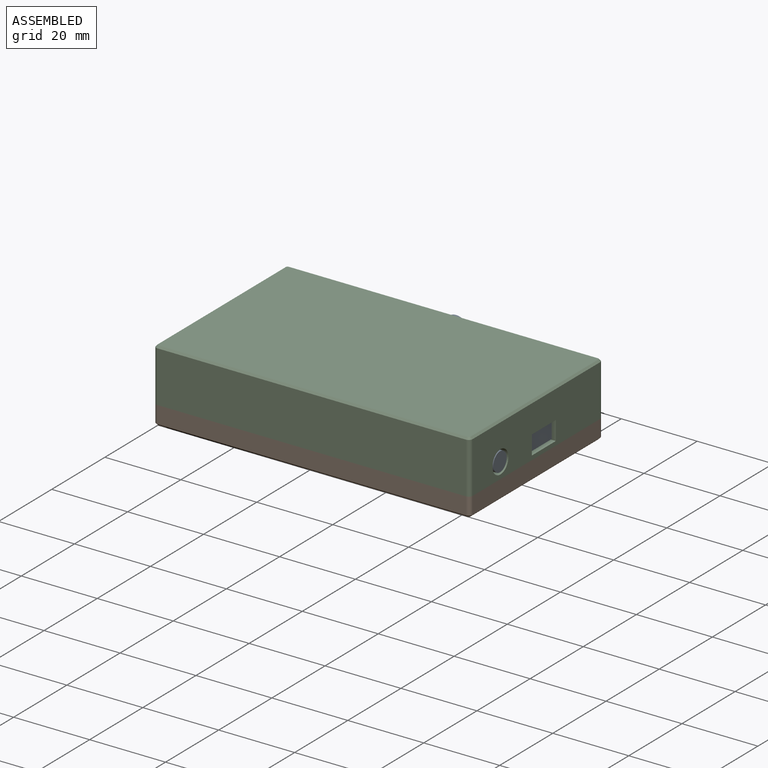
[diagram: assembled view]
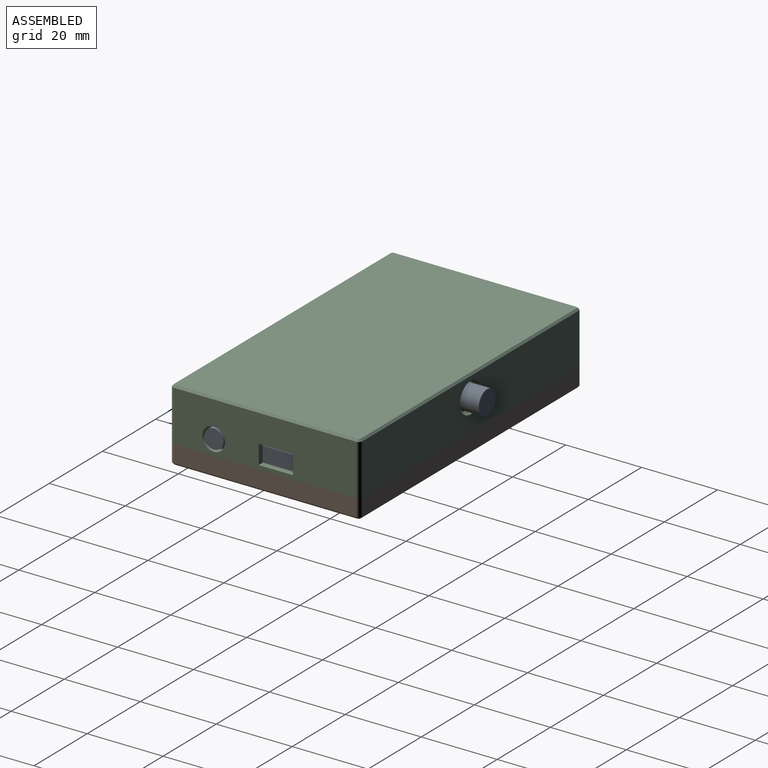
[diagram: assembled view, second angle]
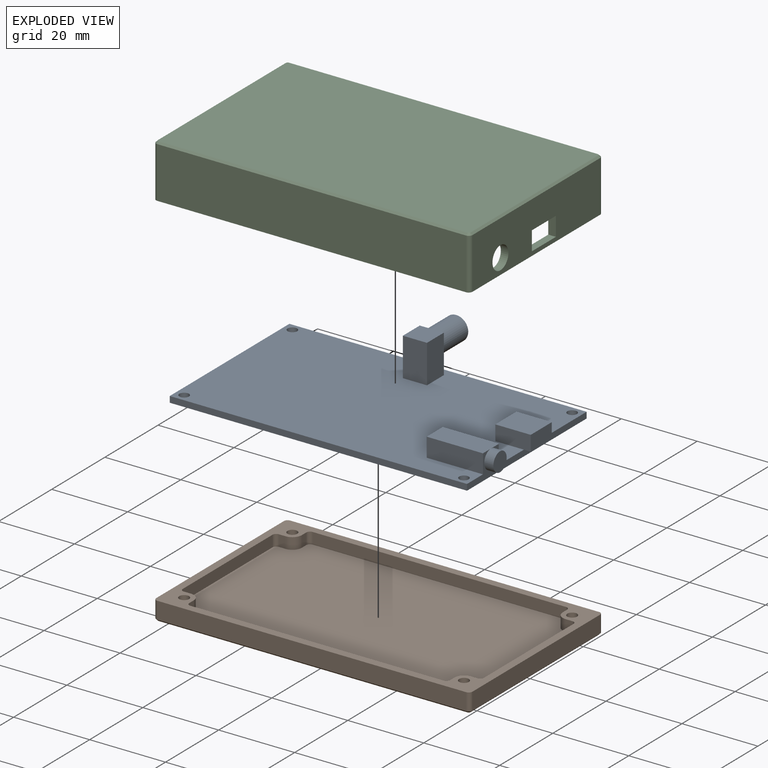
[diagram: exploded view]
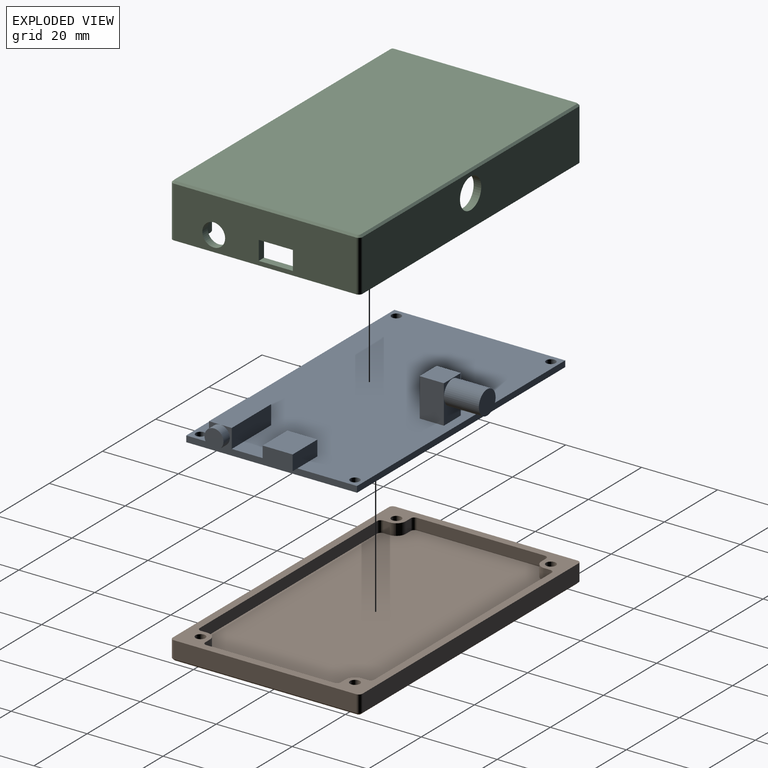
[diagram: exploded view, second angle]
ASSEMBLY  parts=3 mates=2
PART A: 29 faces, bbox 80.7x51.9x11.7 mm
  f0: plane 78.3x1.6mm, normal (0,1,0), area 125.3mm2, adj f1,f7,f8,f9
  f1: plane 45x1.6mm, normal (-1,0,0), area 72mm2, adj f0,f2,f8,f9
  f2: plane 78.3x1.6mm, normal (0,-1,0), area 125.3mm2, adj f1,f7,f8,f9
  f3: cylinder r=1.25mm len=2.5mm, axis (0,0,1), area 12.6mm2, adj f8,f9
  f4: cylinder r=1.25mm len=2.5mm, axis (0,0,1), area 12.6mm2, adj f8,f9
  f5: cylinder r=1.25mm len=2.5mm, axis (0,0,1), area 12.6mm2, adj f8,f9
  f6: cylinder r=1.25mm len=2.5mm, axis (0,0,1), area 12.6mm2, adj f8,f9
  f7: plane 45x6.6mm, normal (1,0,0), area 82.4mm2, adj f0,f2,f8,f9,f10,f11,f12,f14
  f8: plane 78.3x45mm, normal (0,0,-1), area 3503.9mm2, adj f0,f1,f2,f3,f4,f5,f6,f7
  f9: plane 78.3x45mm, normal (0,0,1), area 3315.5mm2, adj f0,f1,f2,f3,f4,f5,f6,f7
  f10: plane 14.8x6mm, normal (0,0,1), area 88.8mm2, adj f7,f11,f12,f13
  f11: plane 14.8x5mm, normal (0,-1,0), area 74mm2, adj f7,f9,f10,f13
  f12: plane 14.8x5mm, normal (0,1,0), area 74mm2, adj f7,f9,f10,f13
  f13: plane 6x5mm, normal (-1,0,0), area 30mm2, adj f9,f10,f11,f12
  f14: cylinder r=2.5mm len=5mm, axis (-1,0,0), area 37.7mm2, adj f7,f15
  f15: plane 5x5mm, normal (1,0,0), area 19.6mm2, adj f14
  f16: plane 7.9x1.8mm, normal (0,0,-1), area 14.2mm2, adj f7,f17,f18,f20
  f17: plane 9.3x4mm, normal (0,-1,0), area 37.2mm2, adj f9,f16,f19,f20,f21
  f18: plane 9.3x4mm, normal (0,1,0), area 37.2mm2, adj f9,f16,f19,f20,f21
  f19: plane 9.3x7.9mm, normal (0,0,1), area 73.5mm2, adj f17,f18,f20,f21
  f20: plane 7.9x4mm, normal (1,0,0), area 31.6mm2, adj f16,f17,f18,f19
  f21: plane 7.9x4mm, normal (-1,0,0), area 31.6mm2, adj f9,f17,f18,f19
  f22: plane 10.1x6.35mm, normal (0,1,0), area 33mm2, adj f9,f23,f25,f26,f27
  f23: plane 10.1x6.35mm, normal (-1,0,0), area 64.1mm2, adj f9,f22,f24,f26
  f24: plane 10.1x6.35mm, normal (0,-1,0), area 64.1mm2, adj f9,f23,f25,f26
  f25: plane 10.1x6.35mm, normal (1,0,0), area 64.1mm2, adj f9,f22,f24,f26
  f26: plane 6.35x6.35mm, normal (0,0,1), area 40.3mm2, adj f22,f23,f24,f25
  f27: cylinder r=3.15mm len=9.2mm, axis (0,-1,0), area 182.1mm2, adj f22,f28
  f28: plane 6.3x6.3mm, normal (0,1,0), area 31.2mm2, adj f27
PART B: 51 faces, bbox 83.3x50x5 mm
  f0: plane 81.3x4.5mm, normal (0,1,0), area 365.8mm2, adj f33,f39,f42,f50
  f1: plane 48x4.5mm, normal (-1,0,0), area 216mm2, adj f33,f39,f40,f46
  f2: plane 81.3x4.5mm, normal (0,-1,0), area 365.8mm2, adj f33,f40,f41,f43
  f3: cylinder r=1.3mm len=3.5mm, axis (0,0,1), area 28.6mm2, adj f33,f36
  f4: cylinder r=1.3mm len=3.5mm, axis (0,0,1), area 28.6mm2, adj f33,f38
  f5: cylinder r=1.3mm len=3.5mm, axis (0,0,1), area 28.6mm2, adj f33,f37
  f6: plane 48x4.5mm, normal (1,0,0), area 216mm2, adj f33,f41,f42,f47
  f7: cylinder r=1.3mm len=3.5mm, axis (0,0,1), area 28.6mm2, adj f33,f35
  f8: plane 82.3x49mm, normal (0,0,-1), area 3934mm2, adj f35,f36,f37,f38,f43,f44,f45,f46
  f9: plane 66.7x3mm, normal (0,1,0), area 200.1mm2, adj f10,f32,f33,f34
  f10: cylinder r=1mm len=3mm, axis (0,0,-1), area 4.7mm2, adj f9,f11,f33,f34
  f11: plane 3x1.65mm, normal (1,0,0), area 4.9mm2, adj f10,f12,f33,f34
  f12: cylinder r=2.5mm len=3mm, axis (0,0,-1), area 11.8mm2, adj f11,f13,f33,f34
  f13: plane 3x1.8mm, normal (0,1,0), area 5.4mm2, adj f12,f14,f33,f34
  f14: cylinder r=1mm len=3mm, axis (0,0,-1), area 4.7mm2, adj f13,f15,f33,f34
  f15: plane 33.7x3mm, normal (1,0,0), area 101.1mm2, adj f14,f16,f33,f34
  f16: cylinder r=1mm len=3mm, axis (0,0,-1), area 4.7mm2, adj f15,f17,f33,f34
  f17: plane 3x1.8mm, normal (0,-1,0), area 5.4mm2, adj f16,f18,f33,f34
  f18: cylinder r=2.5mm len=3mm, axis (0,0,-1), area 11.8mm2, adj f17,f19,f33,f34
  f19: plane 3x1.65mm, normal (1,0,0), area 4.9mm2, adj f18,f20,f33,f34
  f20: cylinder r=1mm len=3mm, axis (0,0,-1), area 4.7mm2, adj f19,f21,f33,f34
  f21: plane 66.7x3mm, normal (0,-1,0), area 200.1mm2, adj f20,f22,f33,f34
  f22: cylinder r=1mm len=3mm, axis (0,0,-1), area 4.7mm2, adj f21,f23,f33,f34
  f23: plane 3x1.65mm, normal (-1,0,0), area 4.9mm2, adj f22,f24,f33,f34
  f24: cylinder r=2.5mm len=3mm, axis (0,0,-1), area 11.8mm2, adj f23,f25,f33,f34
  f25: plane 3x1.8mm, normal (0,-1,0), area 5.4mm2, adj f24,f26,f33,f34
  f26: cylinder r=1mm len=3mm, axis (0,0,-1), area 4.7mm2, adj f25,f27,f33,f34
  f27: plane 33.7x3mm, normal (-1,0,0), area 101.1mm2, adj f26,f28,f33,f34
  f28: cylinder r=1mm len=3mm, axis (0,0,-1), area 4.7mm2, adj f27,f29,f33,f34
  f29: plane 3x1.8mm, normal (0,1,0), area 5.4mm2, adj f28,f30,f33,f34
  f30: cylinder r=2.5mm len=3mm, axis (0,0,-1), area 11.8mm2, adj f29,f31,f33,f34
  f31: plane 3x1.65mm, normal (-1,0,0), area 4.9mm2, adj f30,f32,f33,f34
  f32: cylinder r=1mm len=3mm, axis (0,0,-1), area 4.7mm2, adj f9,f31,f33,f34
  f33: plane 83.3x50mm, normal (0,0,1), area 600.6mm2, adj f0,f1,f2,f3,f4,f5,f6,f7
  f34: plane 79.3x46mm, normal (0,0,1), area 3542.3mm2, adj f9,f10,f11,f12,f13,f14,f15,f16
  f35: cone r=2.8mm half-angle=45deg, axis (0,0,-1), area 27.3mm2, adj f7,f8
  f36: cone r=2.8mm half-angle=45deg, axis (0,0,-1), area 27.3mm2, adj f3,f8
  f37: cone r=1.3mm half-angle=45deg, axis (0,0,-1), area 27.3mm2, adj f5,f8
  f38: cone r=1.3mm half-angle=45deg, axis (0,0,-1), area 27.3mm2, adj f4,f8
  f39: cylinder r=1mm len=4.5mm, axis (0,0,-1), area 7.1mm2, adj f0,f1,f33,f48
  f40: cylinder r=1mm len=4.5mm, axis (0,0,1), area 7.1mm2, adj f1,f2,f33,f44
  f41: cylinder r=1mm len=4.5mm, axis (0,0,-1), area 7.1mm2, adj f2,f6,f33,f45
  f42: cylinder r=1mm len=4.5mm, axis (0,0,1), area 7.1mm2, adj f0,f6,f33,f49
  f43: plane 81.3x0.5mm, normal (0,-0.71,-0.71), area 57.5mm2, adj f2,f8,f44,f45
  f44: cone r=0.5mm half-angle=45deg, axis (0,0,1), area 0.8mm2, adj f8,f40,f43,f46
  f45: cone r=0.5mm half-angle=45deg, axis (0,0,1), area 0.8mm2, adj f8,f41,f43,f47
  f46: plane 48x0.5mm, normal (-0.71,0,-0.71), area 33.9mm2, adj f1,f8,f44,f48
  f47: plane 48x0.5mm, normal (0.71,0,-0.71), area 33.9mm2, adj f6,f8,f45,f49
  f48: cone r=0.5mm half-angle=45deg, axis (0,0,1), area 0.8mm2, adj f8,f39,f46,f50
  f49: cone r=0.5mm half-angle=45deg, axis (0,0,1), area 0.8mm2, adj f8,f42,f47,f50
  f50: plane 81.3x0.5mm, normal (0,0.71,-0.71), area 57.5mm2, adj f0,f8,f48,f49
PART C: 62 faces, bbox 83.3x50x14 mm
  f0: plane 48x13.5mm, normal (1,0,0), area 574.7mm2, adj f10,f43,f44,f45,f46,f47,f52,f53
  f1: plane 46x12mm, normal (-1,0,0), area 350.8mm2, adj f2,f3,f9,f10,f15,f17,f36,f41
  f2: plane 79.3x46mm, normal (0,0,-1), area 3535.3mm2, adj f1,f3,f4,f9,f11,f12,f13,f14
  f3: plane 79.3x12mm, normal (0,1,0), area 820.6mm2, adj f1,f2,f4,f10,f27,f33,f35,f41
  f4: plane 46x12mm, normal (1,0,0), area 424.1mm2, adj f2,f3,f9,f10,f19,f25,f32,f33
  f5: plane 81.3x13.5mm, normal (0,1,0), area 1047.3mm2, adj f10,f49,f50,f53,f56
  f6: plane 48x13.5mm, normal (-1,0,0), area 648mm2, adj f10,f50,f51,f55
  f7: plane 81.3x13.5mm, normal (0,-1,0), area 1097.5mm2, adj f10,f51,f52,f59
  f8: plane 82.3x49mm, normal (0,0,1), area 4032.5mm2, adj f54,f55,f56,f57,f58,f59,f60,f61
  f9: plane 79.3x12mm, normal (0,-1,0), area 771.2mm2, adj f1,f2,f4,f10,f11,f17,f23,f25
  f10: plane 83.3x50mm, normal (0,0,-1), area 516.3mm2, adj f0,f1,f3,f4,f5,f6,f7,f9
  f11: cylinder r=1mm len=10.4mm, axis (0,0,1), area 16.3mm2, adj f2,f9,f12,f17
  f12: plane 10.4x1.65mm, normal (-1,0,0), area 17.2mm2, adj f2,f11,f13,f17
  f13: cylinder r=2.5mm len=10.4mm, axis (0,0,1), area 40.8mm2, adj f2,f12,f14,f17
  f14: plane 10.4x1.8mm, normal (0,-1,0), area 18.7mm2, adj f2,f13,f15,f17
  f15: cylinder r=1mm len=10.4mm, axis (0,0,1), area 16.3mm2, adj f1,f2,f14,f17
  f16: cylinder r=1.05mm len=10.4mm, axis (0,0,1), area 68.6mm2, adj f17,f18
  f17: plane 6.3x6.15mm, normal (0,0,-1), area 22.9mm2, adj f1,f9,f11,f12,f13,f14,f15,f16
  f18: plane 2.1x2.1mm, normal (0,0,-1), area 3.5mm2, adj f16
  f19: cylinder r=1mm len=10.4mm, axis (0,0,1), area 16.3mm2, adj f2,f4,f20,f25
  f20: plane 10.4x1.8mm, normal (0,-1,0), area 18.7mm2, adj f2,f19,f21,f25
  f21: cylinder r=2.5mm len=10.4mm, axis (0,0,1), area 40.8mm2, adj f2,f20,f22,f25
  f22: plane 10.4x1.65mm, normal (1,0,0), area 17.2mm2, adj f2,f21,f23,f25
  f23: cylinder r=1mm len=10.4mm, axis (0,0,1), area 16.3mm2, adj f2,f9,f22,f25
  f24: cylinder r=1.05mm len=10.4mm, axis (0,0,1), area 68.6mm2, adj f25,f26
  f25: plane 6.3x6.15mm, normal (0,0,-1), area 22.9mm2, adj f4,f9,f19,f20,f21,f22,f23,f24
  f26: plane 2.1x2.1mm, normal (0,0,-1), area 3.5mm2, adj f24
  f27: cylinder r=1mm len=10.4mm, axis (0,0,1), area 16.3mm2, adj f2,f3,f28,f33
  f28: plane 10.4x1.65mm, normal (1,0,0), area 17.2mm2, adj f2,f27,f29,f33
  f29: cylinder r=2.5mm len=10.4mm, axis (0,0,1), area 40.8mm2, adj f2,f28,f30,f33
  f30: plane 10.4x1.8mm, normal (0,1,0), area 18.7mm2, adj f2,f29,f32,f33
  f31: cylinder r=1.05mm len=10.4mm, axis (0,0,1), area 68.6mm2, adj f33,f34
  f32: cylinder r=1mm len=10.4mm, axis (0,0,1), area 16.3mm2, adj f2,f4,f30,f33
  f33: plane 6.3x6.15mm, normal (0,0,-1), area 22.9mm2, adj f3,f4,f27,f28,f29,f30,f31,f32
  f34: plane 2.1x2.1mm, normal (0,0,-1), area 3.5mm2, adj f31
  f35: cylinder r=1mm len=10.4mm, axis (0,0,1), area 16.3mm2, adj f2,f3,f40,f41
  f36: cylinder r=1mm len=10.4mm, axis (0,0,1), area 16.3mm2, adj f1,f2,f37,f41
  f37: plane 10.4x1.8mm, normal (0,1,0), area 18.7mm2, adj f2,f36,f38,f41
  f38: cylinder r=2.5mm len=10.4mm, axis (0,0,1), area 40.8mm2, adj f2,f37,f40,f41
  f39: cylinder r=1.05mm len=10.4mm, axis (0,0,1), area 68.6mm2, adj f41,f42
  f40: plane 10.4x1.65mm, normal (-1,0,0), area 17.2mm2, adj f2,f35,f38,f41
  f41: plane 6.3x6.15mm, normal (0,0,-1), area 22.9mm2, adj f1,f3,f35,f36,f37,f38,f39,f40
  f42: plane 2.1x2.1mm, normal (0,0,-1), area 3.5mm2, adj f39
  f43: plane 9x2mm, normal (0,0,-1), area 18mm2, adj f0,f1,f44,f46
  f44: plane 5x2mm, normal (0,1,0), area 10mm2, adj f0,f1,f43,f45
  f45: plane 9x2mm, normal (0,0,1), area 18mm2, adj f0,f1,f44,f46
  f46: plane 5x2mm, normal (0,-1,0), area 10mm2, adj f0,f1,f43,f45
  f47: cylinder r=3mm len=6mm, axis (1,0,0), area 37.7mm2, adj f0,f1
  f48: plane 3.49x0.4mm, normal (0,1,0), area 0.9mm2, adj f2,f49
  f49: cylinder r=4mm len=8mm, axis (0,1,0), area 57.5mm2, adj f2,f5,f9,f48
  f50: cylinder r=1mm len=13.5mm, axis (0,0,1), area 21.2mm2, adj f5,f6,f10,f54
  f51: cylinder r=1mm len=13.5mm, axis (0,0,-1), area 21.2mm2, adj f6,f7,f10,f57
  f52: cylinder r=1mm len=13.5mm, axis (0,0,1), area 21.2mm2, adj f0,f7,f10,f61
  f53: cylinder r=1mm len=13.5mm, axis (0,0,-1), area 21.2mm2, adj f0,f5,f10,f58
  f54: cone r=0.5mm half-angle=45deg, axis (0,0,-1), area 0.8mm2, adj f8,f50,f55,f56
  f55: plane 48x0.5mm, normal (-0.71,0,0.71), area 33.9mm2, adj f6,f8,f54,f57
  f56: plane 81.3x0.5mm, normal (0,0.71,0.71), area 57.5mm2, adj f5,f8,f54,f58
  f57: cone r=0.5mm half-angle=45deg, axis (0,0,-1), area 0.8mm2, adj f8,f51,f55,f59
  f58: cone r=0.5mm half-angle=45deg, axis (0,0,-1), area 0.8mm2, adj f8,f53,f56,f60
  f59: plane 81.3x0.5mm, normal (0,-0.71,0.71), area 57.5mm2, adj f7,f8,f57,f61
  f60: plane 48x0.5mm, normal (0.71,0,0.71), area 33.9mm2, adj f0,f8,f58,f61
  f61: cone r=0.5mm half-angle=45deg, axis (0,0,-1), area 0.8mm2, adj f8,f52,f59,f60
PLACE A at identity fixed
PLACE B t=(0,0,-4.6)mm
PLACE C t=(0,0,10.4)mm
MATE fastened C.f38 <-> A.f4  axis (0,0,-1) through (36.85,-20.35,0)mm
MATE fastened A.f4 <-> B.f3  axis (0,0,-1) through (36.85,-20.35,-1.6)mm
